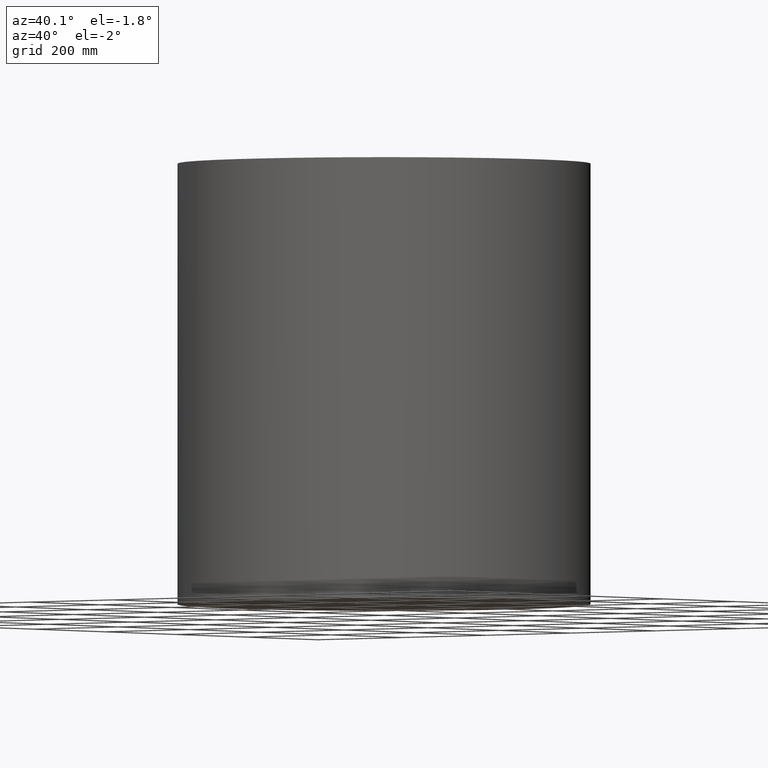
[diagram: clean part render]
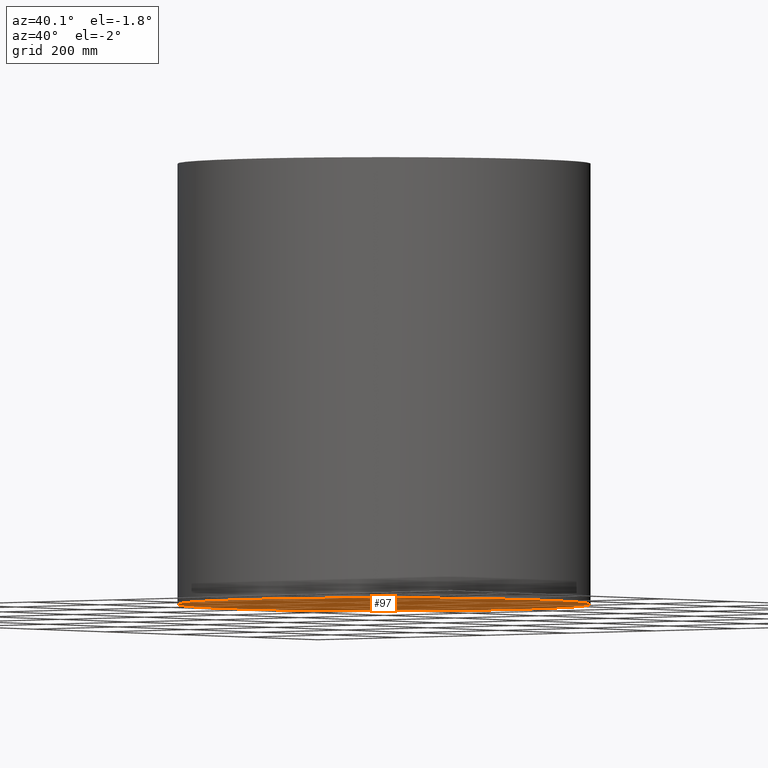
[diagram: same view with one face highlighted and labeled with its STEP entity id]
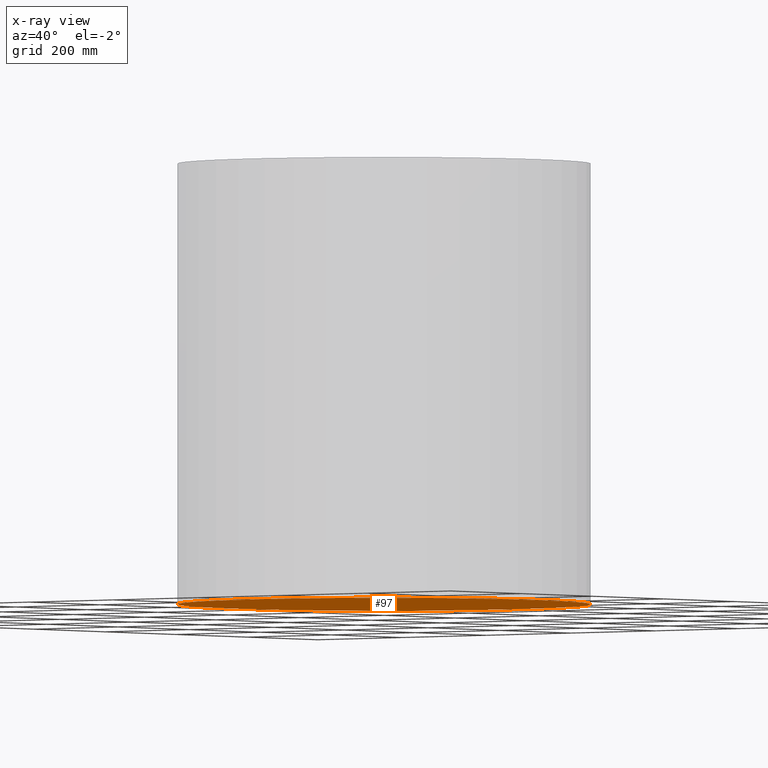
[diagram: x-ray of the same camera — body ghosted, the highlighted face saturated]
A machine part, auxiliary view. The second image highlights one B-rep face of the part: STEP entity #97.
The next image is the same camera in x-ray: the body ghosted, the highlighted face saturated — about 0% of this face is hidden behind the body in this view.
In plain terms, the highlighted planar face has unit normal (0, 0, 1).
Its self-contained STEP definition (entity closure, byte-faithful):
#32=CARTESIAN_POINT('',(-375.,0.,0.));
#33=VERTEX_POINT('',#32);
#59=CARTESIAN_POINT('',(375.,-0.,0.));
#60=VERTEX_POINT('',#59);
#61=CARTESIAN_POINT('',(0.,0.,0.));
#62=DIRECTION('',(0.,0.,1.));
#63=DIRECTION('',(1.,0.,-0.));
#64=AXIS2_PLACEMENT_3D('',#61,#62,#63);
#65=CIRCLE('',#64,375.);
#66=EDGE_CURVE('',#33,#60,#65,.T.);
#68=CARTESIAN_POINT('',(0.,0.,0.));
#69=DIRECTION('',(0.,0.,1.));
#70=DIRECTION('',(1.,0.,-0.));
#71=AXIS2_PLACEMENT_3D('',#68,#69,#70);
#72=CIRCLE('',#71,375.);
#73=EDGE_CURVE('',#60,#33,#72,.T.);
#88=CARTESIAN_POINT('',(0.,0.,0.));
#89=DIRECTION('',(0.,0.,1.));
#90=DIRECTION('',(1.,0.,0.));
#91=AXIS2_PLACEMENT_3D('',#88,#89,#90);
#92=PLANE('',#91);
#93=ORIENTED_EDGE('',*,*,#66,.F.);
#94=ORIENTED_EDGE('',*,*,#73,.F.);
#95=EDGE_LOOP('',(#93,#94));
#96=FACE_BOUND('',#95,.T.);
#97=ADVANCED_FACE('',(#96),#92,.F.);